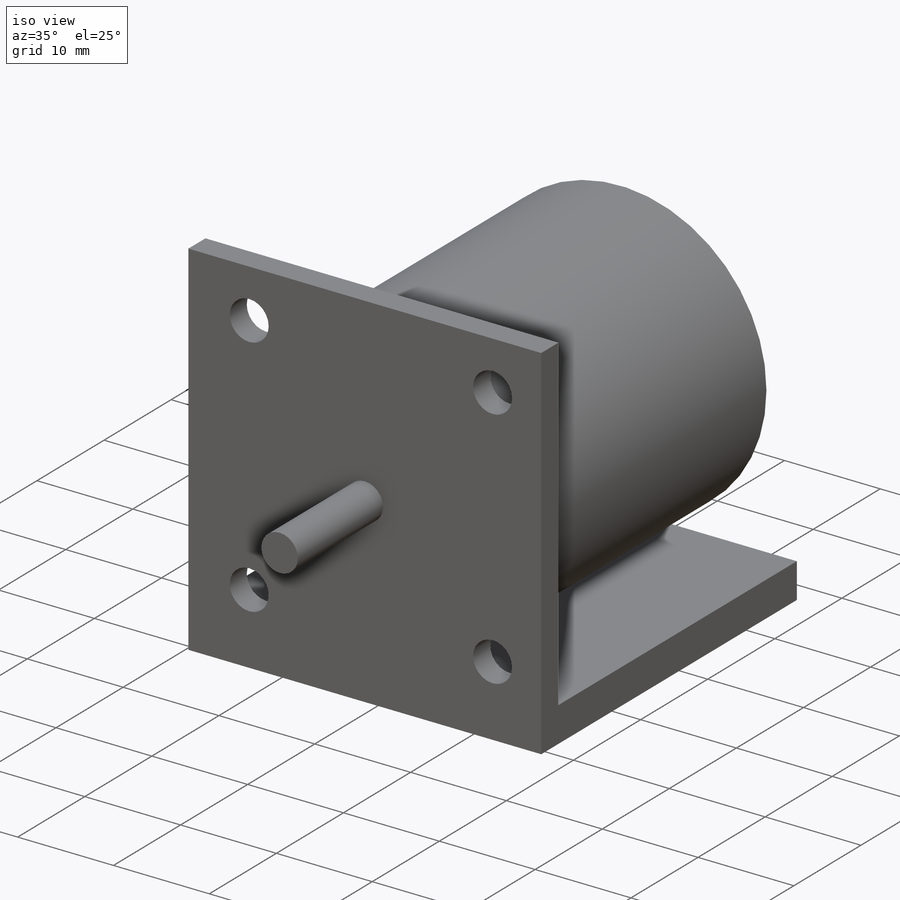
[diagram: iso view]
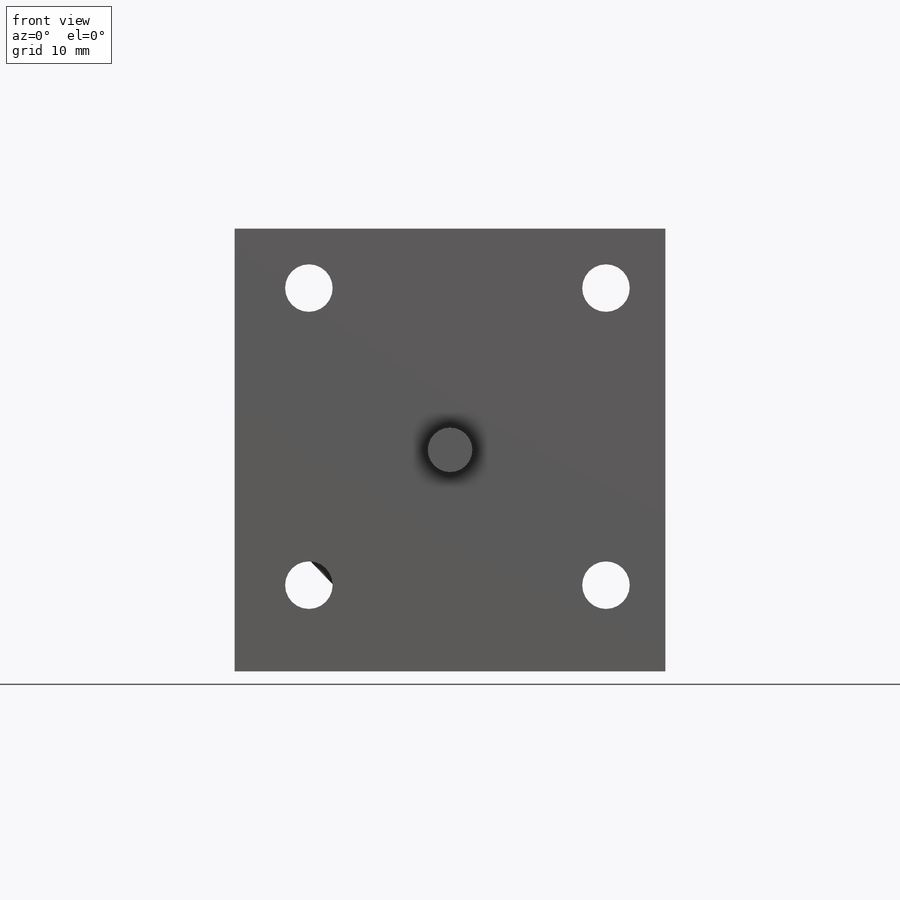
[diagram: front view]
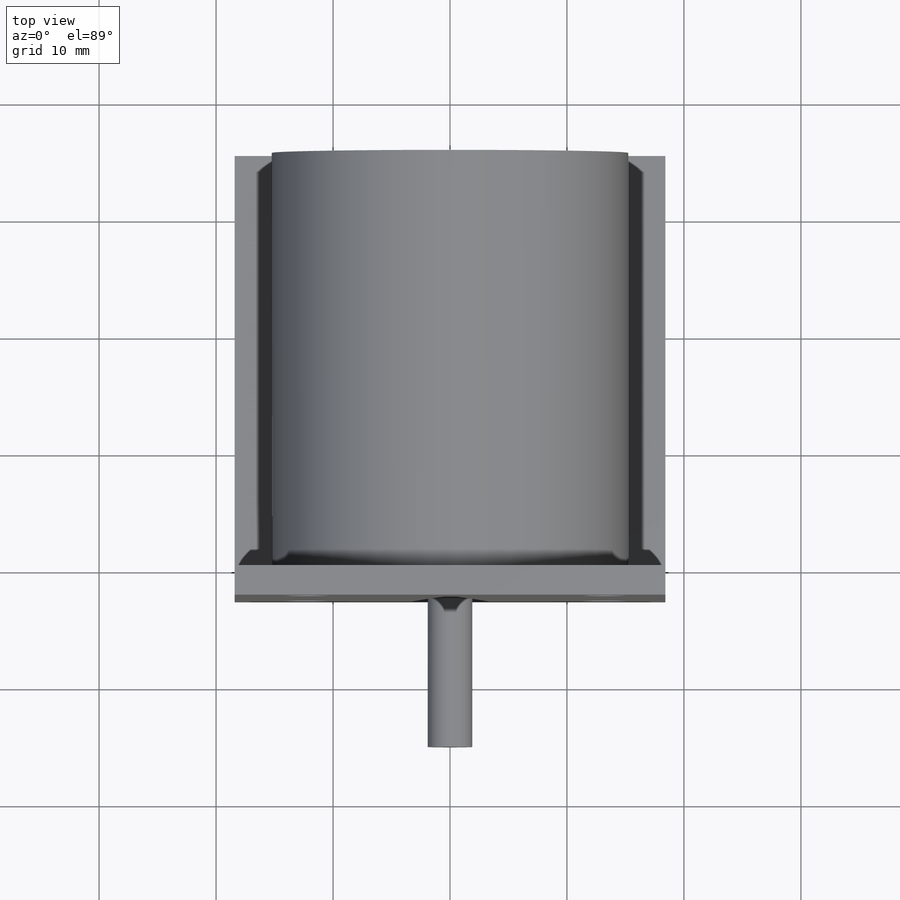
[diagram: top view]
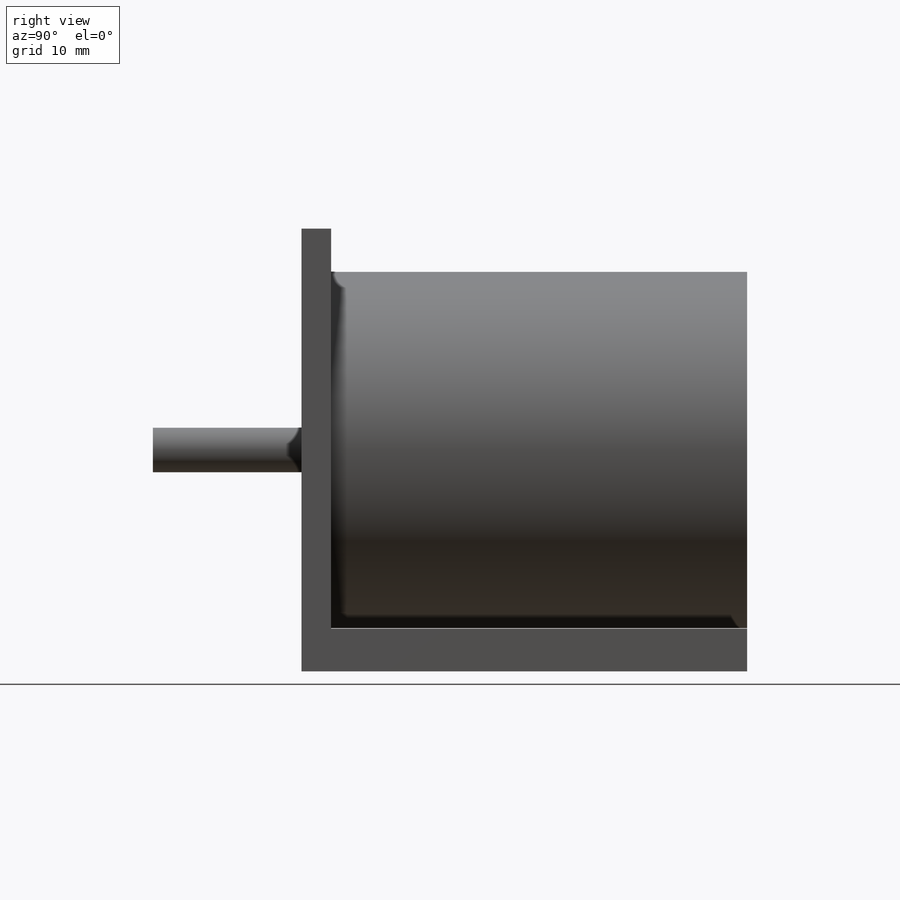
[diagram: right view]
SOLIDWORKS PART (.sldprt)
format: sldprt  version: not decoded by parser v0  size: 196,608 bytes
history: native  units: mm
features: sketch x5, extrude x4, material x1, cut_extrude x1 (+11 scaffold rows collapsed)
feature tree (22):
  scaffold x11  (default folders/planes/origin — collapsed)
  material  "Material <not specified>"
  sketch  "Sketch1"  dims[D1=36.83mm D2=37.846mm]
  extrude  "Boss-Extrude1"  Depth=2.54mm
  sketch  "Sketch2"  dims[D1=~2.365867mm]
  extrude  "Boss-Extrude2"  Depth=12.7mm
  sketch  "Sketch3"  dims[D1=1.524mm]
  extrude  "Boss-Extrude3"  Depth=35.56mm
  sketch  "Sketch4"
  extrude  "Boss-Extrude4"  Depth=35.56mm
  sketch  "Sketch5"  dims[D1=5.08mm D2=5.08mm D3=2.0 D4=2.0]
  cut_extrude  "Cut-Extrude1"  Depth=35.56mm
decode coverage: 9 of 10 modeling features carry decoded parameters
note: ~ marks probable driven/reference dimensions
note: suppression state not decoded; provenance and decode notes live in map.json
